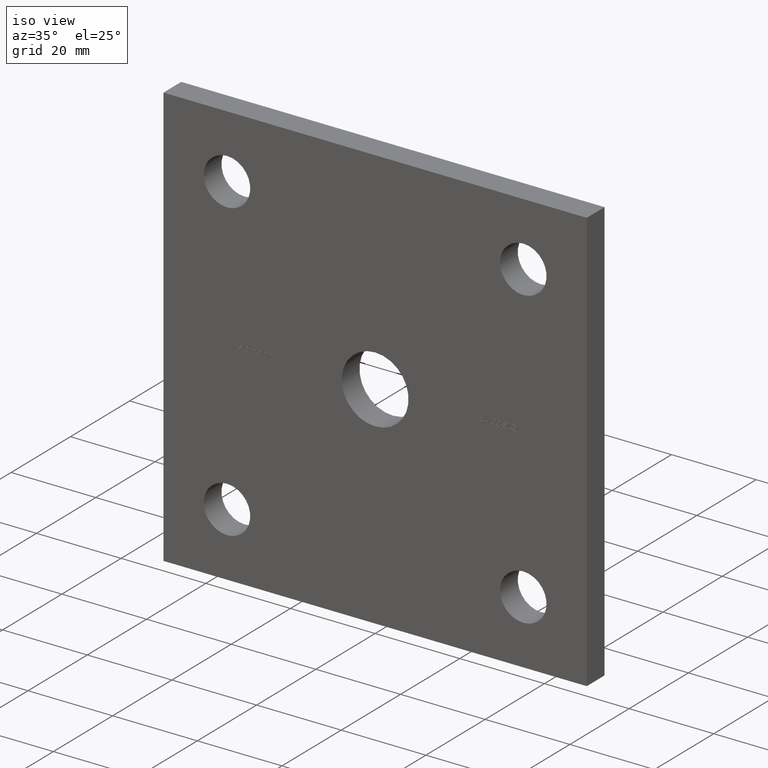
[diagram: clean part render]
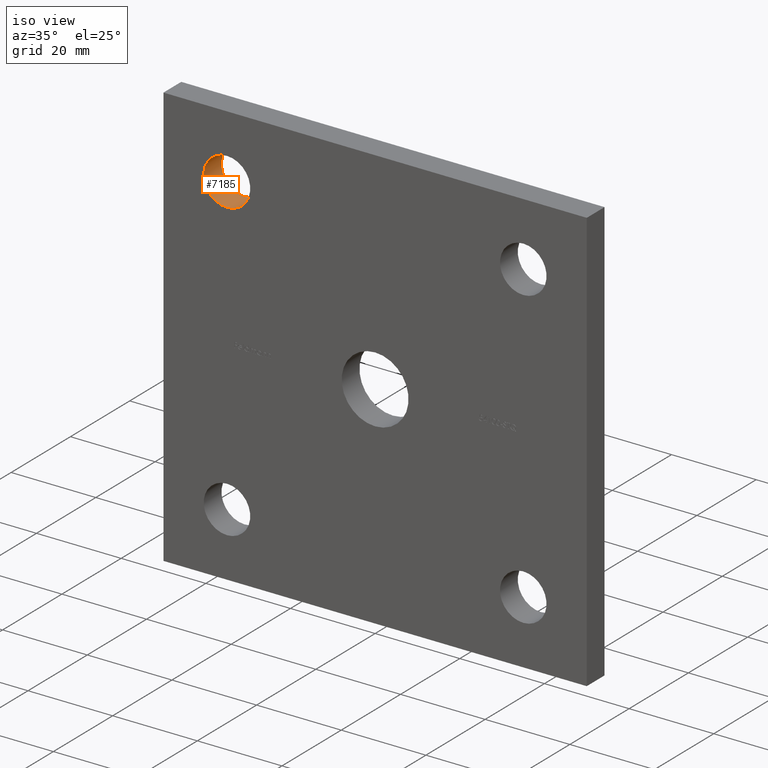
[diagram: same view with one face highlighted and labeled with its STEP entity id]
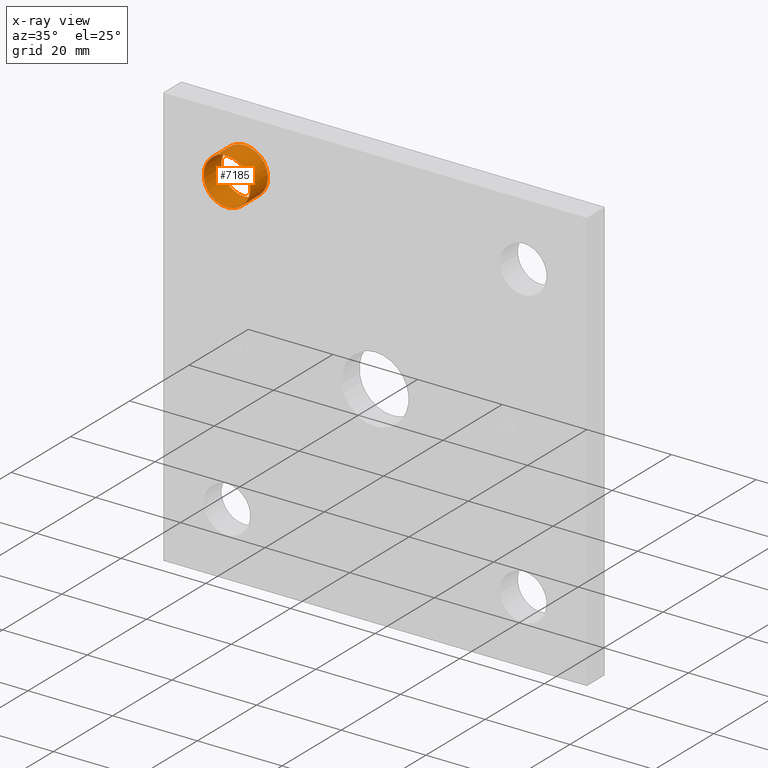
[diagram: x-ray of the same camera — body ghosted, the highlighted face saturated]
A machine part, iso view. The second image highlights one B-rep face of the part: STEP entity #7185.
The next image is the same camera in x-ray: the body ghosted, the highlighted face saturated — about 0% of this face is hidden behind the body in this view.
In plain terms, the highlighted cylindrical surface (bore or boss wall) has radius 5.5 mm, axis along (-0, 1, -0).
Its self-contained STEP definition (entity closure, byte-faithful):
#432 = DIRECTION ( 'NONE',  ( 0.000000000000000000, 1.000000000000000000, 0.000000000000000000 ) ) ;
#1312 = DIRECTION ( 'NONE',  ( 0.000000000000000000, 0.000000000000000000, 1.000000000000000000 ) ) ;
#1546 = EDGE_LOOP ( 'NONE', ( #8053 ) ) ;
#1748 = CARTESIAN_POINT ( 'NONE',  ( -35.00000000000000000, 6.000000000000000000, 35.00000000000000000 ) ) ;
#1767 = CIRCLE ( 'NONE', #5867, 5.499999999999998224 ) ;
#2070 = CARTESIAN_POINT ( 'NONE',  ( -35.00000000000000000, 0.000000000000000000, 35.00000000000000000 ) ) ;
#3332 = ORIENTED_EDGE ( 'NONE', *, *, #8098, .F. ) ;
#4242 = CYLINDRICAL_SURFACE ( 'NONE', #10869, 5.499999999999998224 ) ;
#4984 = CIRCLE ( 'NONE', #7997, 5.499999999999998224 ) ;
#5140 = FACE_OUTER_BOUND ( 'NONE', #1546, .T. ) ;
#5848 = VERTEX_POINT ( 'NONE', #7563 ) ;
#5867 = AXIS2_PLACEMENT_3D ( 'NONE', #11136, #432, #1312 ) ;
#6496 = CARTESIAN_POINT ( 'NONE',  ( -35.00000000000000000, 0.000000000000000000, 40.50000000000000000 ) ) ;
#7185 = ADVANCED_FACE ( 'NONE', ( #7726, #5140 ), #4242, .F. ) ;
#7563 = CARTESIAN_POINT ( 'NONE',  ( -35.00000000000000000, 6.000000000000000000, 40.50000000000000000 ) ) ;
#7672 = VERTEX_POINT ( 'NONE', #6496 ) ;
#7673 = EDGE_LOOP ( 'NONE', ( #3332 ) ) ;
#7726 = FACE_OUTER_BOUND ( 'NONE', #7673, .T. ) ;
#7783 = EDGE_CURVE ( 'NONE', #5848, #5848, #4984, .T. ) ;
#7899 = DIRECTION ( 'NONE',  ( 0.000000000000000000, 0.000000000000000000, 1.000000000000000000 ) ) ;
#7997 = AXIS2_PLACEMENT_3D ( 'NONE', #1748, #11399, #8573 ) ;
#8053 = ORIENTED_EDGE ( 'NONE', *, *, #7783, .T. ) ;
#8098 = EDGE_CURVE ( 'NONE', #7672, #7672, #1767, .T. ) ;
#8573 = DIRECTION ( 'NONE',  ( 0.000000000000000000, 0.000000000000000000, 1.000000000000000000 ) ) ;
#9967 = DIRECTION ( 'NONE',  ( -0.000000000000000000, 1.000000000000000000, -0.000000000000000000 ) ) ;
#10869 = AXIS2_PLACEMENT_3D ( 'NONE', #2070, #9967, #7899 ) ;
#11136 = CARTESIAN_POINT ( 'NONE',  ( -35.00000000000000000, 0.000000000000000000, 35.00000000000000000 ) ) ;
#11399 = DIRECTION ( 'NONE',  ( 0.000000000000000000, 1.000000000000000000, 0.000000000000000000 ) ) ;